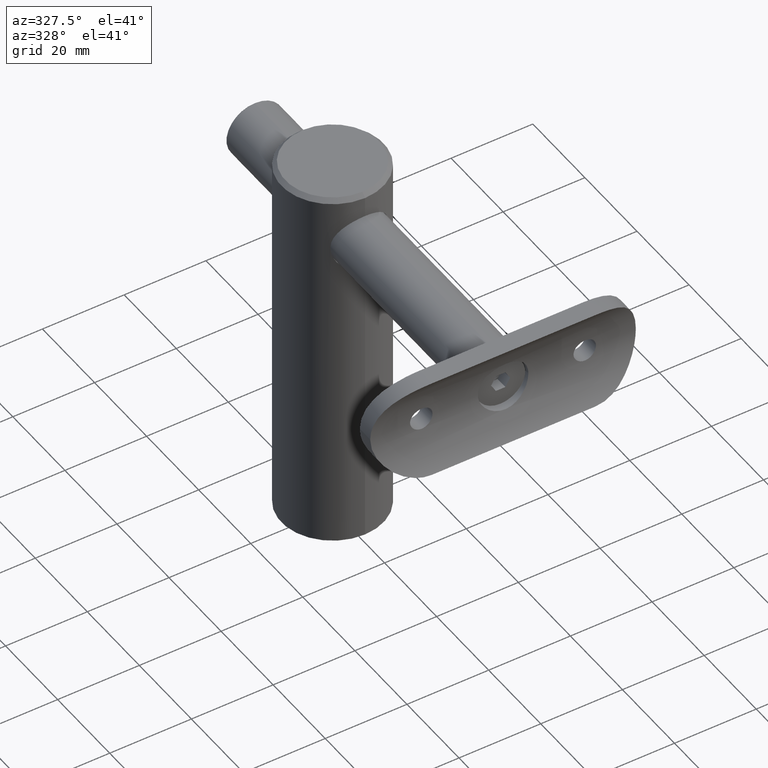
[diagram: clean part render]
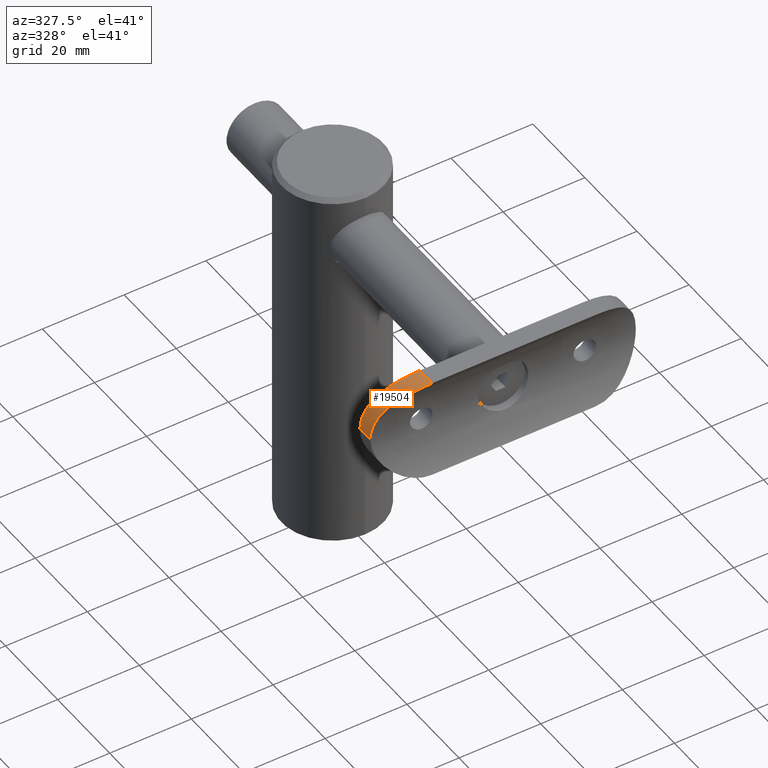
[diagram: same view with one face highlighted and labeled with its STEP entity id]
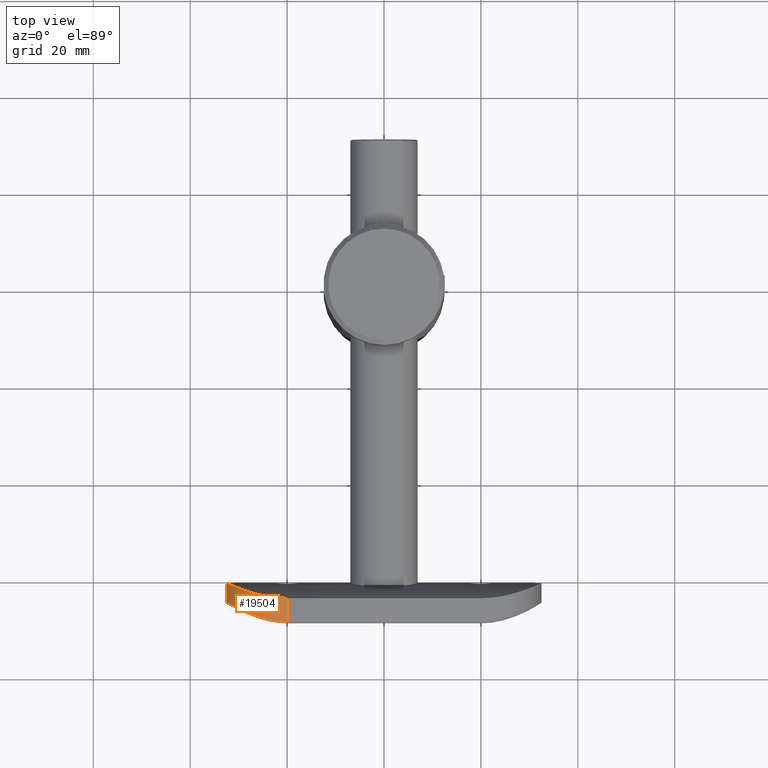
[diagram: same view with one face highlighted and labeled with its STEP entity id]
A machine part, auxiliary view. The second image highlights one B-rep face of the part: STEP entity #19504.
A second angle (top view) of the same face is appended — the face is thin or edge-on in the first view.
In plain terms, the highlighted cylindrical surface (partial cylindrical patch) has radius 12.5 mm, axis along (0, -1, 0).
Its self-contained STEP definition (entity closure, byte-faithful):
#440 = CARTESIAN_POINT ( 'NONE',  ( -9.413556458363908419, 6.194533709361368601, 28.26249860773988232 ) ) ;
#477 = LINE ( 'NONE', #4208, #3566 ) ;
#634 = CARTESIAN_POINT ( 'NONE',  ( -4.105999603327870950, 4.397476152548239092, 31.81377709549067845 ) ) ;
#858 = CARTESIAN_POINT ( 'NONE',  ( -12.50000000000000000, 3.318729470161021933, 20.84105733039345409 ) ) ;
#1354 = ORIENTED_EDGE ( 'NONE', *, *, #16462, .T. ) ;
#1960 = CARTESIAN_POINT ( 'NONE',  ( -12.41450038045377013, 8.013930239834735403, 21.67799915308981795 ) ) ;
#2242 = CARTESIAN_POINT ( 'NONE',  ( -1.664684350995173423, 0.04192139592815165294, 32.41608617209116971 ) ) ;
#2314 = CARTESIAN_POINT ( 'NONE',  ( -10.15326211524584643, 2.134602035805865938, 27.30241053714793509 ) ) ;
#2388 = CARTESIAN_POINT ( 'NONE',  ( -12.49999999999999645, 3.318729470161020600, 20.00000000000000000 ) ) ;
#2988 = LINE ( 'NONE', #14621, #6760 ) ;
#3102 = CARTESIAN_POINT ( 'NONE',  ( 0.000000000000000000, 25.20000000000000639, 20.00000000000000000 ) ) ;
#3491 = CARTESIAN_POINT ( 'NONE',  ( -7.655030421865182788, 5.427483003039809795, 29.89001198582322161 ) ) ;
#3561 = CARTESIAN_POINT ( 'NONE',  ( -9.919985569846220486, 6.456967504733640340, 27.64830385797707635 ) ) ;
#3566 = VECTOR ( 'NONE', #17786, 1000.000000000000000 ) ;
#3680 = CARTESIAN_POINT ( 'NONE',  ( -6.328572668113499944, 4.954279635400576254, 30.80962434064442235 ) ) ;
#3839 = CARTESIAN_POINT ( 'NONE',  ( -10.83018612312571882, 2.440555194631706559, 26.29386951518686644 ) ) ;
#3904 = CARTESIAN_POINT ( 'NONE',  ( -8.266035766619465264, 1.392015620549705401, 29.38537545976073417 ) ) ;
#4208 = CARTESIAN_POINT ( 'NONE',  ( 0.000000000000000000, 8.077208171562689998, 32.50000000000000000 ) ) ;
#4990 = CARTESIAN_POINT ( 'NONE',  ( -4.492959243642649092, 4.477970880217003291, 31.67175631405216762 ) ) ;
#5053 = CARTESIAN_POINT ( 'NONE',  ( -12.49999999999999645, 8.077208171562689998, 20.00000000000000000 ) ) ;
#5277 = CARTESIAN_POINT ( 'NONE',  ( -4.460191993434861502, 0.3948698794312914817, 31.68435314470301023 ) ) ;
#5340 = CARTESIAN_POINT ( 'NONE',  ( -11.68341459577140462, 2.871341540761545019, 24.46233648995672993 ) ) ;
#6109 = CARTESIAN_POINT ( 'NONE',  ( -12.49999999999999645, 8.077208171562689998, 20.00000000000000000 ) ) ;
#6760 = VECTOR ( 'NONE', #17447, 1000.000000000000000 ) ;
#6860 = EDGE_CURVE ( 'NONE', #17749, #9463, #2988, .T. ) ;
#6885 = CARTESIAN_POINT ( 'NONE',  ( -12.06660317602190524, 3.076343127531658173, 23.28902056191594383 ) ) ;
#7118 = VERTEX_POINT ( 'NONE', #16468 ) ;
#7806 = EDGE_LOOP ( 'NONE', ( #19430, #10337, #14373, #1354 ) ) ;
#8048 = CARTESIAN_POINT ( 'NONE',  ( -0.8487943003396123398, 4.000000000000011546, 32.50000000000000711 ) ) ;
#8170 = CARTESIAN_POINT ( 'NONE',  ( -11.83620638877006215, 7.607798498856694458, 24.10069751121963577 ) ) ;
#8267 = CARTESIAN_POINT ( 'NONE',  ( -2.877492456091673478, 0.1615283928029718485, 32.17128298990892432 ) ) ;
#8394 = CARTESIAN_POINT ( 'NONE',  ( -11.82318603278413960, 2.945306615177200271, 24.07833795785314734 ) ) ;
#9113 = DIRECTION ( 'NONE',  ( 0.000000000000000000, 1.000000000000000000, 0.000000000000000000 ) ) ;
#9463 = VERTEX_POINT ( 'NONE', #6109 ) ;
#9500 = CARTESIAN_POINT ( 'NONE',  ( -11.20502510935213181, 7.199201472346342001, 25.59990303977419757 ) ) ;
#9701 = CARTESIAN_POINT ( 'NONE',  ( -10.82196766755579631, 6.962884092408008208, 26.30774772896643654 ) ) ;
#9786 = CARTESIAN_POINT ( 'NONE',  ( -6.305381315458571834, 0.7915044484486803977, 30.82371801999916272 ) ) ;
#9923 = CARTESIAN_POINT ( 'NONE',  ( -12.41600094213971772, 3.270152093552311179, 21.66693629175974678 ) ) ;
#10337 = ORIENTED_EDGE ( 'NONE', *, *, #6860, .F. ) ;
#10414 = B_SPLINE_CURVE_WITH_KNOTS ( 'NONE', 3,
 ( #5053, #15728, #1960, #17246, #8170, #9500, #9701, #3561, #440, #12539, #12603, #3491, #12735, #3680, #14068, #4990, #634, #17113, #18625, #15481, #8048, #16978 ),
 .UNSPECIFIED., .F., .F.,
 ( 4, 2, 2, 2, 2, 2, 2, 2, 2, 2, 4 ),
 ( 0.000000000000000000, 0.002503829590647099756, 0.005007659181294199513, 0.007511488771941299269, 0.01001531836258839729, 0.01126723315791194890, 0.01251914795323550399, 0.01502297754388261589, 0.01627489233920617964, 0.01752680713452973993, 0.02003063672517685703 ),
 .UNSPECIFIED. ) ;
#10632 = CARTESIAN_POINT ( 'NONE',  ( -12.49999999999999645, 3.318729470161020600, 20.00000000000000000 ) ) ;
#11365 = CARTESIAN_POINT ( 'NONE',  ( -9.910013130227614653, 2.028718244006088245, 27.62913782769574667 ) ) ;
#11831 = VERTEX_POINT ( 'NONE', #13034 ) ;
#12539 = CARTESIAN_POINT ( 'NONE',  ( -8.570261194392809756, 5.807054850030229254, 29.10818890720388197 ) ) ;
#12603 = CARTESIAN_POINT ( 'NONE',  ( -8.275097588008394567, 5.678865835620648284, 29.37734438678382176 ) ) ;
#12735 = CARTESIAN_POINT ( 'NONE',  ( -7.329839308601783898, 5.304310467230266113, 30.13339322785993701 ) ) ;
#12953 = CARTESIAN_POINT ( 'NONE',  ( -7.643915563752463171, 1.185045859685587066, 29.89864509263436432 ) ) ;
#13034 = CARTESIAN_POINT ( 'NONE',  ( 0.000000000000000000, 4.000000000000010658, 32.50000000000000000 ) ) ;
#14068 = CARTESIAN_POINT ( 'NONE',  ( -5.620677554943400267, 4.744079628429572537, 31.19483348254708943 ) ) ;
#14373 = ORIENTED_EDGE ( 'NONE', *, *, #15067, .F. ) ;
#14431 = CARTESIAN_POINT ( 'NONE',  ( -11.21245238722107196, 2.629098992545249036, 25.58474759764793305 ) ) ;
#14500 = CARTESIAN_POINT ( 'NONE',  ( -8.562866471435931714, 1.497495063479019617, 29.11525600394244151 ) ) ;
#14621 = CARTESIAN_POINT ( 'NONE',  ( -12.49999999999999645, 8.077208171562689998, 20.00000000000000000 ) ) ;
#14801 = AXIS2_PLACEMENT_3D ( 'NONE', #3102, #9113, #16615 ) ;
#15067 = EDGE_CURVE ( 'NONE', #7118, #17749, #17768, .T. ) ;
#15360 = EDGE_CURVE ( 'NONE', #9463, #11831, #10414, .T. ) ;
#15481 = CARTESIAN_POINT ( 'NONE',  ( -1.680376849083639712, 4.050750502668665654, 32.41446829867826551 ) ) ;
#15728 = CARTESIAN_POINT ( 'NONE',  ( -12.49999999999999822, 8.077208171562691774, 20.84887060648279089 ) ) ;
#15747 = CARTESIAN_POINT ( 'NONE',  ( -0.8406273536774242494, -7.623296525288703052E-18, 32.50000000000000000 ) ) ;
#15886 = CARTESIAN_POINT ( 'NONE',  ( -9.129107160068512528, 1.709771713892840106, 28.54809784016517327 ) ) ;
#15951 = CARTESIAN_POINT ( 'NONE',  ( -4.070717388981840656, 0.3277296730789981960, 31.82587335543210472 ) ) ;
#16462 = EDGE_CURVE ( 'NONE', #7118, #11831, #477, .T. ) ;
#16468 = CARTESIAN_POINT ( 'NONE',  ( 0.000000000000000000, 0.000000000000000000, 32.50000000000000000 ) ) ;
#16615 = DIRECTION ( 'NONE',  ( 0.000000000000000000, 0.000000000000000000, 1.000000000000000000 ) ) ;
#16978 = CARTESIAN_POINT ( 'NONE',  ( 0.000000000000000000, 4.000000000000010658, 32.50000000000000000 ) ) ;
#17005 = FACE_OUTER_BOUND ( 'NONE', #7806, .T. ) ;
#17113 = CARTESIAN_POINT ( 'NONE',  ( -3.307977677724411869, 4.255752225252757093, 32.06158553790278631 ) ) ;
#17246 = CARTESIAN_POINT ( 'NONE',  ( -12.08472937843046857, 7.780467016947515191, 23.30072972297891809 ) ) ;
#17270 = CARTESIAN_POINT ( 'NONE',  ( -5.592058036261042808, 0.6162643484422626328, 31.20930733956447511 ) ) ;
#17331 = CARTESIAN_POINT ( 'NONE',  ( 0.000000000000000000, 0.000000000000000000, 32.50000000000000000 ) ) ;
#17387 = CARTESIAN_POINT ( 'NONE',  ( -9.398516132625639230, 1.816575251650675904, 28.25106046154295569 ) ) ;
#17447 = DIRECTION ( 'NONE',  ( -0.000000000000000000, 1.000000000000000000, -0.000000000000000000 ) ) ;
#17749 = VERTEX_POINT ( 'NONE', #10632 ) ;
#17768 = B_SPLINE_CURVE_WITH_KNOTS ( 'NONE', 3,
 ( #17331, #15747, #2242, #8267, #18837, #15951, #5277, #17270, #9786, #18907, #12953, #3904, #14500, #15886, #17387, #11365, #2314, #3839, #14431, #5340, #8394, #6885, #18978, #9923, #858, #2388 ),
 .UNSPECIFIED., .F., .F.,
 ( 4, 2, 2, 2, 2, 2, 2, 2, 2, 2, 2, 2, 4 ),
 ( 0.000000000000000000, 0.002483427128890327521, 0.003725140693335493233, 0.004966854257780659379, 0.007450281386670997742, 0.008691994951116168225, 0.009933708515561339575, 0.01117542208000650919, 0.01241713564445167881, 0.01490056277334201110, 0.01614227633778717377, 0.01738398990223233645, 0.01986741703112265139 ),
 .UNSPECIFIED. ) ;
#17786 = DIRECTION ( 'NONE',  ( 0.000000000000000000, 1.000000000000000000, 0.000000000000000000 ) ) ;
#18625 = CARTESIAN_POINT ( 'NONE',  ( -2.903656776258741967, 4.195777031998710882, 32.16519419076994524 ) ) ;
#18837 = CARTESIAN_POINT ( 'NONE',  ( -3.277855041561020144, 0.2108776143917554247, 32.06970119788353202 ) ) ;
#18879 = CYLINDRICAL_SURFACE ( 'NONE', #14801, 12.50000000000000000 ) ;
#18907 = CARTESIAN_POINT ( 'NONE',  ( -7.316861939614362598, 1.083062932609349049, 30.14291416132810397 ) ) ;
#18978 = CARTESIAN_POINT ( 'NONE',  ( -12.16969663537520852, 3.133117325917493812, 22.88442763853376505 ) ) ;
#19430 = ORIENTED_EDGE ( 'NONE', *, *, #15360, .F. ) ;
#19504 = ADVANCED_FACE ( 'NONE', ( #17005 ), #18879, .T. ) ;